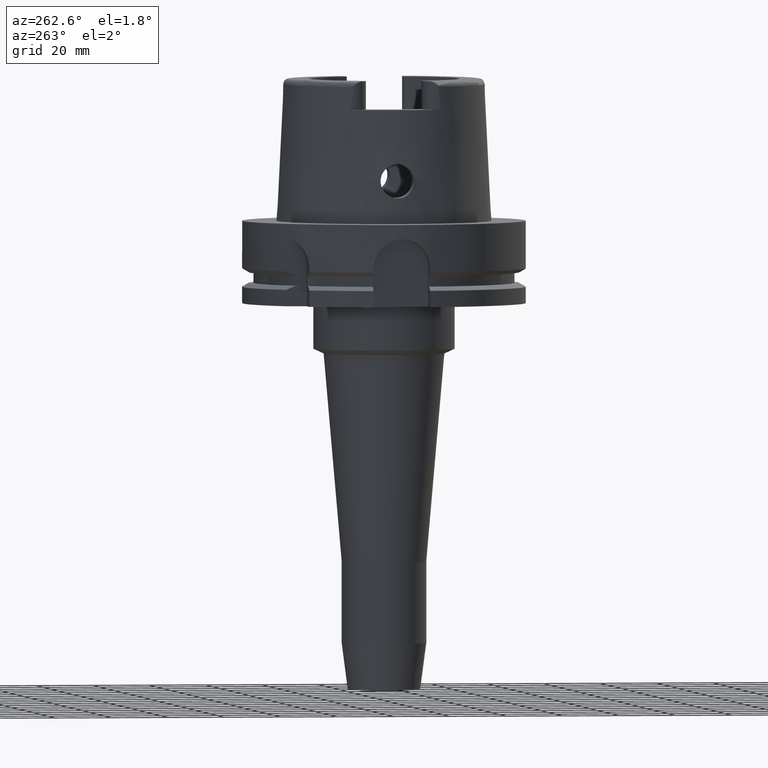
[diagram: clean part render]
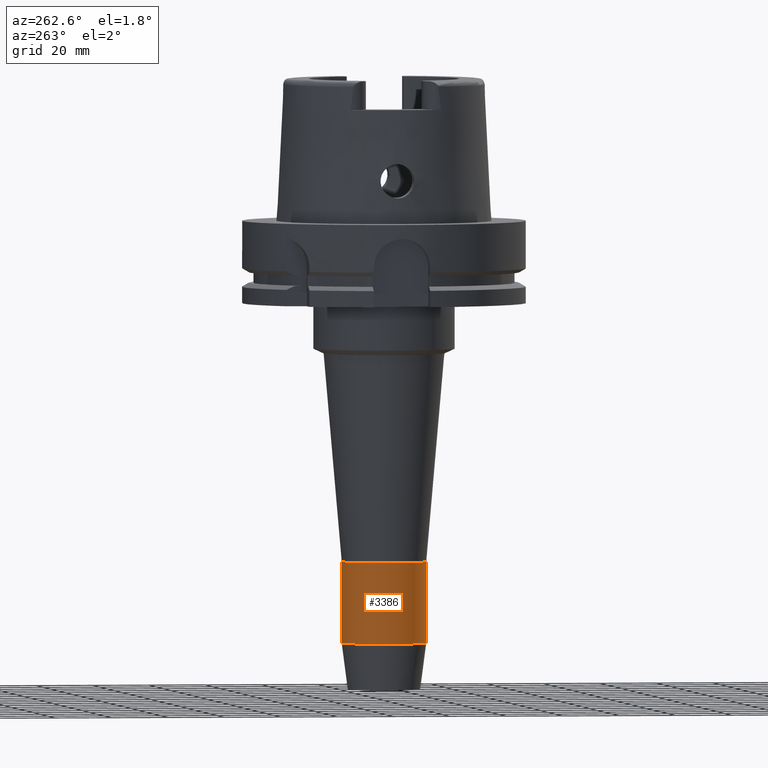
[diagram: same view with one face highlighted and labeled with its STEP entity id]
A machine part, auxiliary view. The second image highlights one B-rep face of the part: STEP entity #3386.
In plain terms, the highlighted cylindrical surface (partial cylindrical patch) has radius 15 mm, axis along (0, 0, 1).
Its self-contained STEP definition (entity closure, byte-faithful):
#1106=CARTESIAN_POINT('',(0.E0,0.E0,-1.486349477641E2));
#1107=DIRECTION('',(0.E0,0.E0,1.E0));
#1108=DIRECTION('',(0.E0,1.E0,0.E0));
#1109=AXIS2_PLACEMENT_3D('',#1106,#1107,#1108);
#1121=DIRECTION('',(0.E0,-8.457971041011E-14,-1.E0));
#1122=VECTOR('',#1121,2.862594776410E1);
#1123=CARTESIAN_POINT('',(0.E0,-1.5E1,-1.20009E2));
#1124=LINE('',#1123,#1122);
#1128=DIRECTION('',(0.E0,8.457971041011E-14,-1.E0));
#1129=VECTOR('',#1128,2.862594776410E1);
#1130=CARTESIAN_POINT('',(0.E0,1.5E1,-1.20009E2));
#1131=LINE('',#1130,#1129);
#1165=CARTESIAN_POINT('',(0.E0,0.E0,-1.20009E2));
#1166=DIRECTION('',(0.E0,0.E0,-1.E0));
#1167=DIRECTION('',(0.E0,-1.E0,0.E0));
#1168=AXIS2_PLACEMENT_3D('',#1165,#1166,#1167);
#2409=CARTESIAN_POINT('',(0.E0,1.5E1,-1.486349477641E2));
#2410=VERTEX_POINT('',#2409);
#2411=CARTESIAN_POINT('',(0.E0,-1.5E1,-1.486349477641E2));
#2412=VERTEX_POINT('',#2411);
#2413=CARTESIAN_POINT('',(0.E0,1.5E1,-1.20009E2));
#2414=VERTEX_POINT('',#2413);
#2415=CARTESIAN_POINT('',(0.E0,-1.5E1,-1.20009E2));
#2416=VERTEX_POINT('',#2415);
#3372=CARTESIAN_POINT('',(0.E0,0.E0,-1.7575E2));
#3373=DIRECTION('',(0.E0,0.E0,1.E0));
#3374=DIRECTION('',(0.E0,1.E0,0.E0));
#3375=AXIS2_PLACEMENT_3D('',#3372,#3373,#3374);
#3376=CYLINDRICAL_SURFACE('',#3375,1.5E1);
#3378=ORIENTED_EDGE('',*,*,#3377,.F.);
#3380=ORIENTED_EDGE('',*,*,#3379,.F.);
#3382=ORIENTED_EDGE('',*,*,#3381,.T.);
#3383=ORIENTED_EDGE('',*,*,#3365,.F.);
#3384=EDGE_LOOP('',(#3378,#3380,#3382,#3383));
#3385=FACE_OUTER_BOUND('',#3384,.F.);
#1110=CIRCLE('',#1109,1.500000000001E1);
#1169=CIRCLE('',#1168,1.5E1);
#3365=EDGE_CURVE('',#2410,#2412,#1110,.T.);
#3377=EDGE_CURVE('',#2414,#2410,#1131,.T.);
#3379=EDGE_CURVE('',#2416,#2414,#1169,.T.);
#3381=EDGE_CURVE('',#2416,#2412,#1124,.T.);
#3386=ADVANCED_FACE('',(#3385),#3376,.T.);